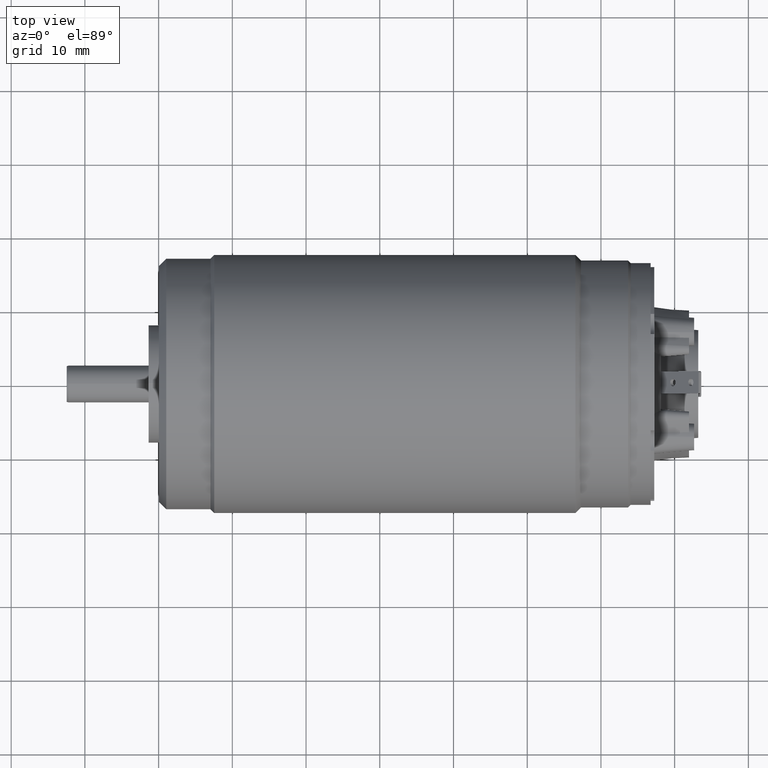
[diagram: clean part render]
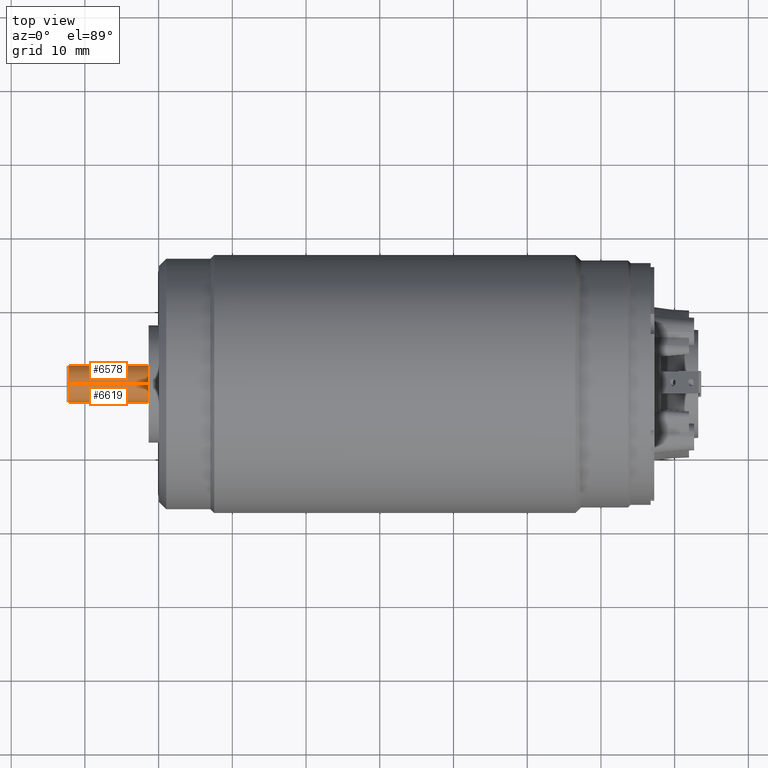
[diagram: same view with one multi-face feature highlighted, each face labeled with its STEP entity id]
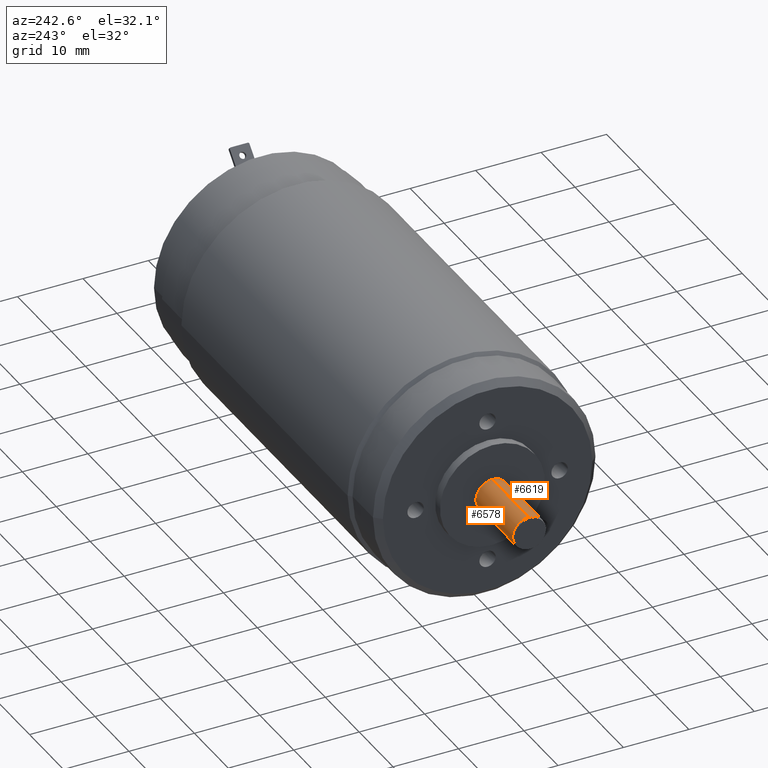
[diagram: same view with one multi-face feature highlighted, each face labeled with its STEP entity id]
A machine part, top view. The highlighted faces form ONE feature: a constant-radius fillet chain: 2 tangent blend faces with common blend radius 2.5 mm. The faces share edges in the B-rep.
A second angle (auxiliary view) of the same feature is appended — it is thin or edge-on in the first view.
Their STEP definitions:
[1] entity #6578 (Cylinder):
#2339=CARTESIAN_POINT('',(-6.136E1,0.E0,0.E0));
#2340=DIRECTION('',(-1.E0,0.E0,0.E0));
#2341=DIRECTION('',(0.E0,0.E0,1.E0));
#2342=AXIS2_PLACEMENT_3D('',#2339,#2340,#2341);
#2349=CARTESIAN_POINT('',(-7.219815133578E1,0.E0,0.E0));
#2350=DIRECTION('',(1.E0,0.E0,0.E0));
#2351=DIRECTION('',(0.E0,0.E0,-1.E0));
#2352=AXIS2_PLACEMENT_3D('',#2349,#2350,#2351);
#2369=DIRECTION('',(1.E0,6.883425192600E-12,0.E0));
#2370=VECTOR('',#2369,1.083815127525E1);
#2371=CARTESIAN_POINT('',(-7.219815127525E1,-7.460339942148E-11,2.5E0));
#2372=LINE('',#2371,#2370);
#2373=DIRECTION('',(1.E0,-6.883366272191E-12,0.E0));
#2374=VECTOR('',#2373,1.083815127525E1);
#2375=CARTESIAN_POINT('',(-7.219815127525E1,7.460276083317E-11,-2.5E0));
#2376=LINE('',#2375,#2374);
#3602=CARTESIAN_POINT('',(-6.136E1,0.E0,2.5E0));
#3603=CARTESIAN_POINT('',(-6.136E1,0.E0,-2.5E0));
#3604=VERTEX_POINT('',#3602);
#3605=VERTEX_POINT('',#3603);
#3622=CARTESIAN_POINT('',(-7.219815133578E1,0.E0,2.5E0));
#3623=CARTESIAN_POINT('',(-7.219815133578E1,0.E0,-2.5E0));
#3624=VERTEX_POINT('',#3622);
#3625=VERTEX_POINT('',#3623);
#6564=CARTESIAN_POINT('',(-5.9335E1,0.E0,0.E0));
#6565=DIRECTION('',(-1.E0,0.E0,0.E0));
#6566=DIRECTION('',(0.E0,0.E0,-1.E0));
#6567=AXIS2_PLACEMENT_3D('',#6564,#6565,#6566);
#6568=CYLINDRICAL_SURFACE('',#6567,2.5E0);
#6570=ORIENTED_EDGE('',*,*,#6569,.F.);
#6572=ORIENTED_EDGE('',*,*,#6571,.T.);
#6573=ORIENTED_EDGE('',*,*,#6557,.F.);
#6575=ORIENTED_EDGE('',*,*,#6574,.F.);
#6576=EDGE_LOOP('',(#6570,#6572,#6573,#6575));
#6577=FACE_OUTER_BOUND('',#6576,.F.);
#6578=ADVANCED_FACE('',(#6577),#6568,.T.);
#2343=CIRCLE('',#2342,2.5E0);
#2353=CIRCLE('',#2352,2.5E0);
#6557=EDGE_CURVE('',#3604,#3605,#2343,.T.);
#6569=EDGE_CURVE('',#3625,#3624,#2353,.T.);
#6571=EDGE_CURVE('',#3625,#3605,#2376,.T.);
#6574=EDGE_CURVE('',#3624,#3604,#2372,.T.);
[2] entity #6619 (Cylinder):
#2344=CARTESIAN_POINT('',(-6.136E1,0.E0,0.E0));
#2345=DIRECTION('',(1.E0,0.E0,0.E0));
#2346=DIRECTION('',(0.E0,0.E0,1.E0));
#2347=AXIS2_PLACEMENT_3D('',#2344,#2345,#2346);
#2364=CARTESIAN_POINT('',(-7.219815133578E1,0.E0,0.E0));
#2365=DIRECTION('',(1.E0,0.E0,0.E0));
#2366=DIRECTION('',(0.E0,0.E0,1.E0));
#2367=AXIS2_PLACEMENT_3D('',#2364,#2365,#2366);
#2369=DIRECTION('',(1.E0,6.883425192600E-12,0.E0));
#2370=VECTOR('',#2369,1.083815127525E1);
#2371=CARTESIAN_POINT('',(-7.219815127525E1,-7.460339942148E-11,2.5E0));
#2372=LINE('',#2371,#2370);
#2373=DIRECTION('',(1.E0,-6.883366272191E-12,0.E0));
#2374=VECTOR('',#2373,1.083815127525E1);
#2375=CARTESIAN_POINT('',(-7.219815127525E1,7.460276083317E-11,-2.5E0));
#2376=LINE('',#2375,#2374);
#3602=CARTESIAN_POINT('',(-6.136E1,0.E0,2.5E0));
#3603=CARTESIAN_POINT('',(-6.136E1,0.E0,-2.5E0));
#3604=VERTEX_POINT('',#3602);
#3605=VERTEX_POINT('',#3603);
#3622=CARTESIAN_POINT('',(-7.219815133578E1,0.E0,2.5E0));
#3623=CARTESIAN_POINT('',(-7.219815133578E1,0.E0,-2.5E0));
#3624=VERTEX_POINT('',#3622);
#3625=VERTEX_POINT('',#3623);
#6608=CARTESIAN_POINT('',(-5.9335E1,0.E0,0.E0));
#6609=DIRECTION('',(-1.E0,0.E0,0.E0));
#6610=DIRECTION('',(0.E0,0.E0,-1.E0));
#6611=AXIS2_PLACEMENT_3D('',#6608,#6609,#6610);
#6612=CYLINDRICAL_SURFACE('',#6611,2.5E0);
#6613=ORIENTED_EDGE('',*,*,#6599,.F.);
#6614=ORIENTED_EDGE('',*,*,#6574,.T.);
#6615=ORIENTED_EDGE('',*,*,#6559,.T.);
#6616=ORIENTED_EDGE('',*,*,#6571,.F.);
#6617=EDGE_LOOP('',(#6613,#6614,#6615,#6616));
#6618=FACE_OUTER_BOUND('',#6617,.F.);
#6619=ADVANCED_FACE('',(#6618),#6612,.T.);
#2348=CIRCLE('',#2347,2.5E0);
#2368=CIRCLE('',#2367,2.5E0);
#6559=EDGE_CURVE('',#3604,#3605,#2348,.T.);
#6571=EDGE_CURVE('',#3625,#3605,#2376,.T.);
#6574=EDGE_CURVE('',#3624,#3604,#2372,.T.);
#6599=EDGE_CURVE('',#3624,#3625,#2368,.T.);